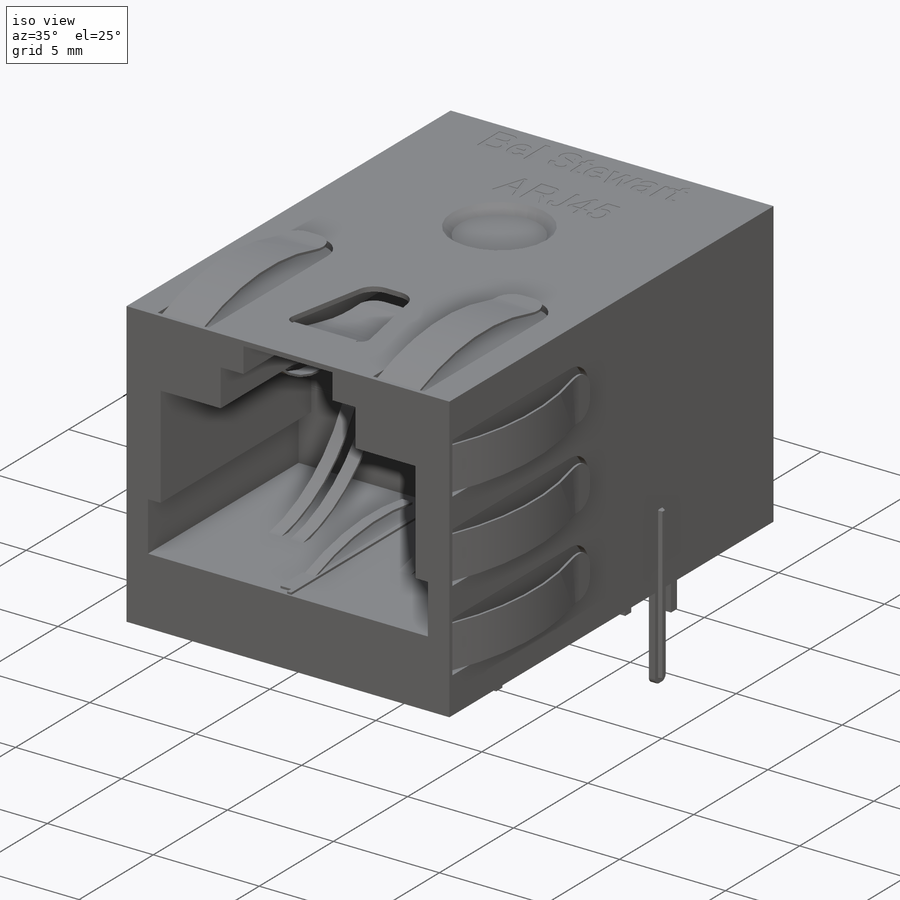
[diagram: iso view]
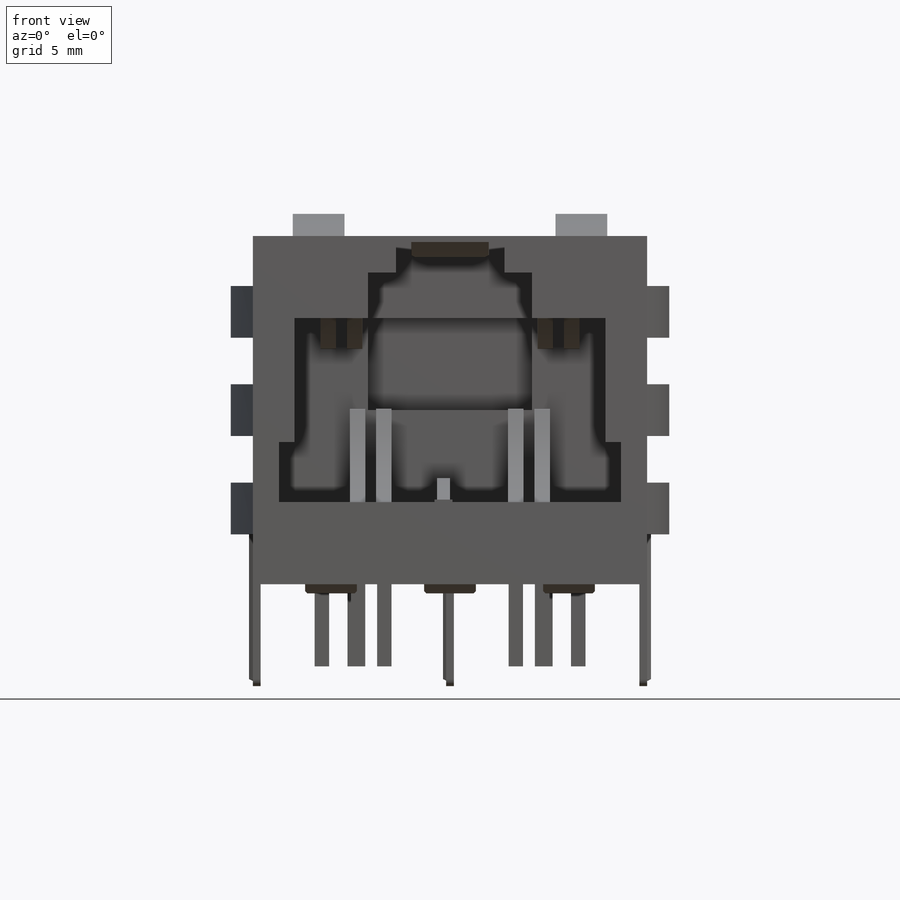
[diagram: front view]
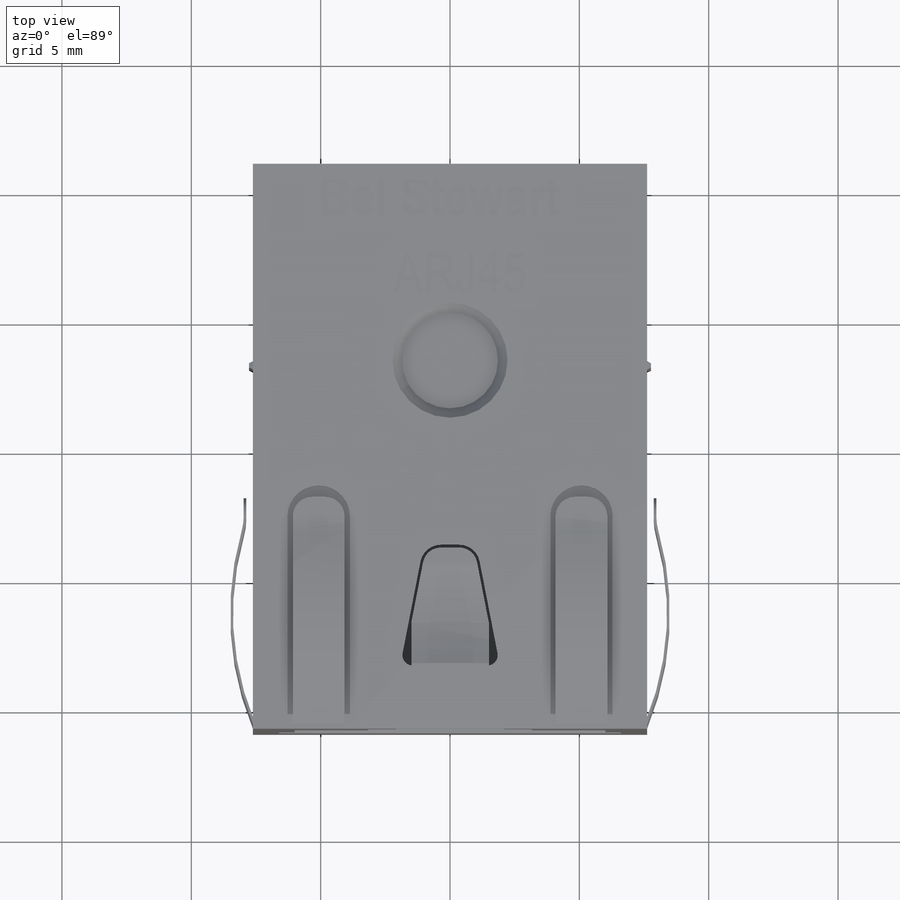
[diagram: top view]
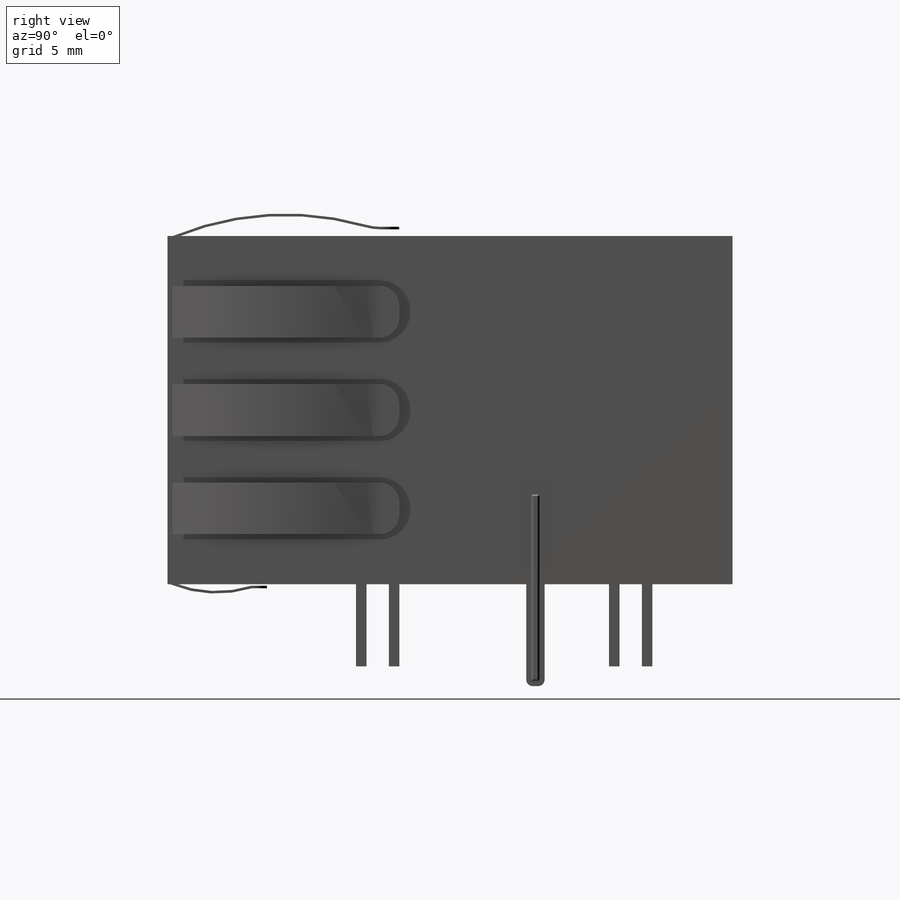
[diagram: right view]
SOLIDWORKS PART (.sldprt)
format: sldprt  version: not decoded by parser v0  size: 2,044,928 bytes
history: native  units: mm
features: sketch x26, extrude x14, cut_extrude x12, mirror x5, pattern_linear x5, fillet x4, plane x4, material x1 (+13 scaffold rows collapsed)
feature tree (84):
  scaffold x13  (default folders/planes/origin — collapsed)
  material  "Material <not specified>"
  sketch  "Sketch1"  dims[D1=10.922mm D2=7.62mm]
  extrude  "Boss-Extrude1"  Depth=13.462mm
  sketch  "Sketch2"  dims[D1=3.175mm D2=1.016mm D3=1.016mm D4=0.2286mm D5=1.4224mm D6=1.6129mm D7=1.6129mm D8=3.175mm D9=2.0955mm D10=2.0955mm D11=3.175mm D12=3.175mm D13=2.3241mm]
  cut_extrude  "Cut-Extrude1"  Depth=10.1473mm
  sketch  "Sketch3"
  cut_extrude  "Cut-Extrude2"  Depth=2.54mm
  sketch  "Sketch4"  dims[c1.D8=2.4765mm c1.D1=3.4544mm c1.D2=2.4765mm c1.D3=1.143mm c1.D4=1.143mm c1.D5=5.715mm c1.D6=5.715mm c1.D7=2.477mm c1.D9=3.683mm c2.D2=3.683mm]
  cut_extrude  "Cut-Extrude3"  Depth=3.4671mm
  sketch  "Sketch5"  dims[c1.D5=0.2mm c1.D1=0.2mm c1.D2=0.4mm c2.D1=0.8mm c2.D8=1.2mm c3.D1=1.8796mm c3.D2=1.8796mm c3.D3=2.4384mm c3.D4=2.4384mm c3.D6=7.112mm c3.D7=7.112mm c3.D8=1.016mm c3.D9=1.016mm c4.D2=5.08mm c4.D3=1.2065mm c4.D5=1.2065mm c4.D6=9.398mm]
  cut_extrude  "Cut-Extrude4"  Depth=0.3mm
  sketch  "Sketch6"  dims[D1=1.2mm D2=0.2mm]
  cut_extrude  "Cut-Extrude5"  Depth=0.3mm
  mirror  "Mirror1"
  sketch  "Sketch7"  dims[c1.D3=0.1mm c1.D4=0.1mm c1.D5=0.1mm c1.D6=0.1mm c1.D7=0.7mm c2.D5=0.1mm c2.D6=0.1mm c2.D8=0.7mm c2.D1=3.9624mm c2.D2=1.524mm c2.D3=1.524mm c2.D4=1.2065mm c3.D5=1.2065mm c3.D2=0.762mm c3.D3=0.762mm c4.D2=0.1mm c4.D9=4.572mm]
  cut_extrude  "Cut-Extrude6"  Depth=0.3mm
  sketch  "Sketch8"  dims[D2=~3.438345mm D1=14.25mm]
  cut_extrude  "Cut-Extrude7"  Depth=0.3683mm
  sketch  "Sketch9"  dims[D2=0.3556mm D3=0.3mm D1=14.224mm]
  extrude  "Boss-Extrude2"  Depth=3.937mm
  fillet  "Fillet1"  Radius=0.25mm
  sketch  "Sketch11"  dims[D1=0.2mm D2=0.2mm D3=0.2mm]
  extrude  "Boss-Extrude3"  Depth=0.15mm
  mirror  "Mirror2"
  pattern_linear  "LPattern1"  Count1=2 Count2=1 Spacing1=7.5mm Spacing2=10mm
  sketch  "Sketch12"  dims[c1.D3=0.2794mm c1.D4=0.2032mm c1.D1=6.731mm c1.D2=3.556mm c1.D5=2.54mm c1.D6=5.461mm c1.D8=4.318mm c1.D9=3.683mm c1.D10=1.27mm c1.D11=3.048mm c1.D7=2.0 c2.D3=2.0]
  extrude  "Boss-Extrude4"  Depth=3.175mm
  plane  "Plane1"
  sketch  "Sketch13"  dims[D1=2.0mm D2=0.1mm]
  extrude  "Boss-Extrude5"  Depth=1mm
  fillet  "Fillet2"  Radius=0.75mm
  pattern_linear  "LPattern2"  Count1=2 Count2=2 Spacing1=3.8mm Spacing2=3.8mm
  mirror  "Mirror4"
  plane  "Plane2"
  sketch  "Sketch15"  dims[D1=2.0mm]
  extrude  "Boss-Extrude6"  Depth=1mm
  mirror  "Mirror5"
  fillet  "Fillet3"  Radius=0.75mm
  fillet  "Fillet4"  Radius=0.75mm
  sketch  "Sketch16"  dims[D1=0.1mm]
  extrude  "Boss-Extrude7"  Depth=1.5mm
  sketch  "Sketch17"  dims[D1=0.1mm D2=1.0mm D3=0.1mm D4=0.1mm D5=0.1mm]
  cut_extrude  "Cut-Extrude8"  Depth=1.5mm
  sketch  "Sketch18"  dims[D1=0.1mm]
  extrude  "Boss-Extrude8"  Depth=1mm
  sketch  "Sketch19"  dims[D1=0.1mm D2=0.5mm]
  cut_extrude  "Cut-Extrude9"  Depth=1mm
  pattern_linear  "LPattern3"  Count1=2 Count2=2 Spacing1=4.6mm Spacing2=4.6mm
  sketch  "Sketch20"
  cut_extrude  "Cut-Extrude10"  Depth=0.02mm
  plane  "Plane3"
  sketch  "Sketch21"  dims[D3=0.1mm D1=4.25mm D2=0.1mm]
  extrude  "Boss-Extrude9"  Depth=0.3mm
  pattern_linear  "LPattern4"  Count1=2 Count2=7 Spacing1=1.02mm Spacing2=1.02mm
  plane  "Plane4"
  sketch  "Sketch22"  dims[D1=0.1mm]
  extrude  "Boss-Extrude10"  Depth=0.3mm
  pattern_linear  "LPattern5"  Count1=2 Count2=1 Spacing1=1.02mm Spacing2=1.02mm
  mirror  "Mirror6"
  sketch  "Sketch23"  dims[D1=0.1mm D2=0.1mm D3=0.1mm D4=0.1mm]
  cut_extrude  "Cut-Extrude11"  Depth=11mm
  sketch  "Sketch24"  dims[D1=0.005mm]
  extrude  "Boss-Extrude11"  [1 undecoded]
  sketch  "Sketch25"  dims[D1=0.0mm]
  cut_extrude  "Cut-Extrude12"  Depth=2.5mm
  sketch  "Sketch26"  dims[D1=0.005mm]
  extrude  "Boss-Extrude12"  Depth=2.6mm
  sketch  "Sketch27"  dims[D1=0.5mm D2=1.5mm]
  extrude  "Boss-Extrude13"  [1 undecoded]
  sketch  "Sketch28"  dims[D1=0.1mm]
  extrude  "Boss-Extrude14"  Depth=0.5mm
decode coverage: 57 of 66 modeling features carry decoded parameters
note: ~ marks probable driven/reference dimensions
note: 2 parameter values undecoded
note: suppression state not decoded; provenance and decode notes live in map.json
